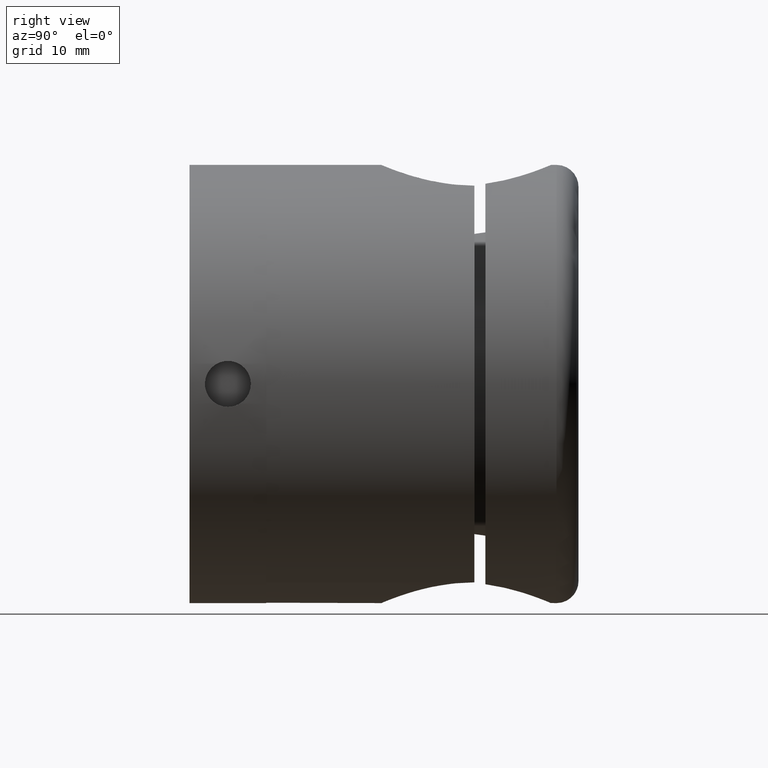
[diagram: clean part render]
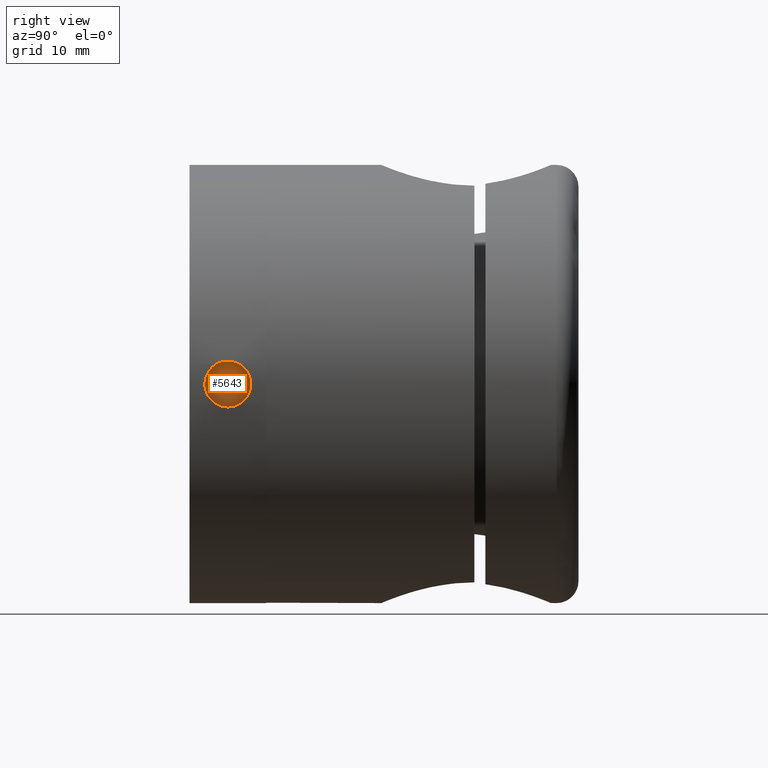
[diagram: same view with one face highlighted and labeled with its STEP entity id]
A machine part, right view. The second image highlights one B-rep face of the part: STEP entity #5643.
In plain terms, the highlighted planar face has unit normal (1, 0, 0).
Its self-contained STEP definition (entity closure, byte-faithful):
#485 = DIRECTION ( 'NONE',  ( 0.0000000000000000000, 0.0000000000000000000, -1.000000000000000000 ) ) ;
#612 = CARTESIAN_POINT ( 'NONE',  ( 16.00000000000000000, 3.500000000000000000, 0.0000000000000000000 ) ) ;
#1013 = CARTESIAN_POINT ( 'NONE',  ( 16.00000000000000000, 3.500000000000000000, -2.100000000000000100 ) ) ;
#1709 = PLANE ( 'NONE',  #15916 ) ;
#4132 = EDGE_CURVE ( 'NONE', #12975, #12975, #11969, .T. ) ;
#5643 = ADVANCED_FACE ( 'NONE', ( #14632 ), #1709, .T. ) ;
#7912 = AXIS2_PLACEMENT_3D ( 'NONE', #10023, #8546, #485 ) ;
#8546 = DIRECTION ( 'NONE',  ( 1.000000000000000000, 0.0000000000000000000, 0.0000000000000000000 ) ) ;
#8655 = ORIENTED_EDGE ( 'NONE', *, *, #4132, .T. ) ;
#8783 = EDGE_LOOP ( 'NONE', ( #8655 ) ) ;
#9904 = DIRECTION ( 'NONE',  ( 1.000000000000000000, 0.0000000000000000000, 0.0000000000000000000 ) ) ;
#10023 = CARTESIAN_POINT ( 'NONE',  ( 16.00000000000000000, 3.500000000000000000, 0.0000000000000000000 ) ) ;
#11969 = CIRCLE ( 'NONE', #7912, 2.100000000000000100 ) ;
#12975 = VERTEX_POINT ( 'NONE', #1013 ) ;
#14632 = FACE_OUTER_BOUND ( 'NONE', #8783, .T. ) ;
#15916 = AXIS2_PLACEMENT_3D ( 'NONE', #612, #9904, #16468 ) ;
#16468 = DIRECTION ( 'NONE',  ( 0.0000000000000000000, 0.0000000000000000000, -1.000000000000000000 ) ) ;